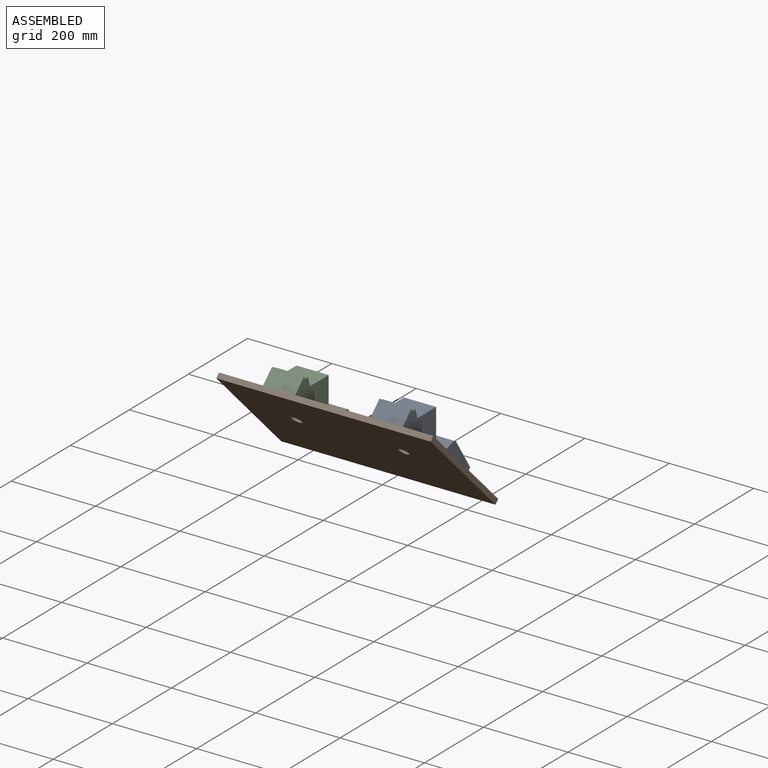
[diagram: assembled view]
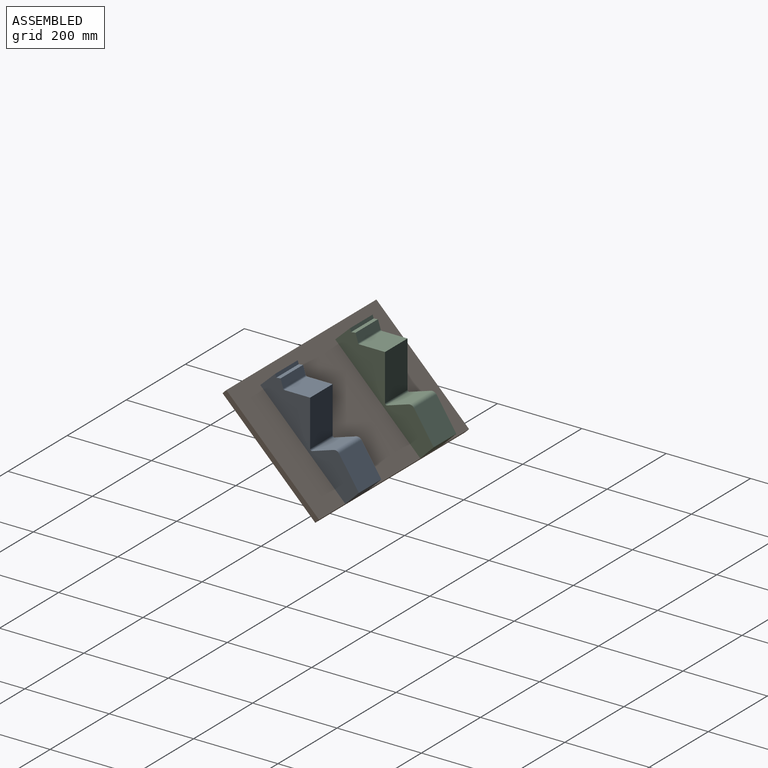
[diagram: assembled view, second angle]
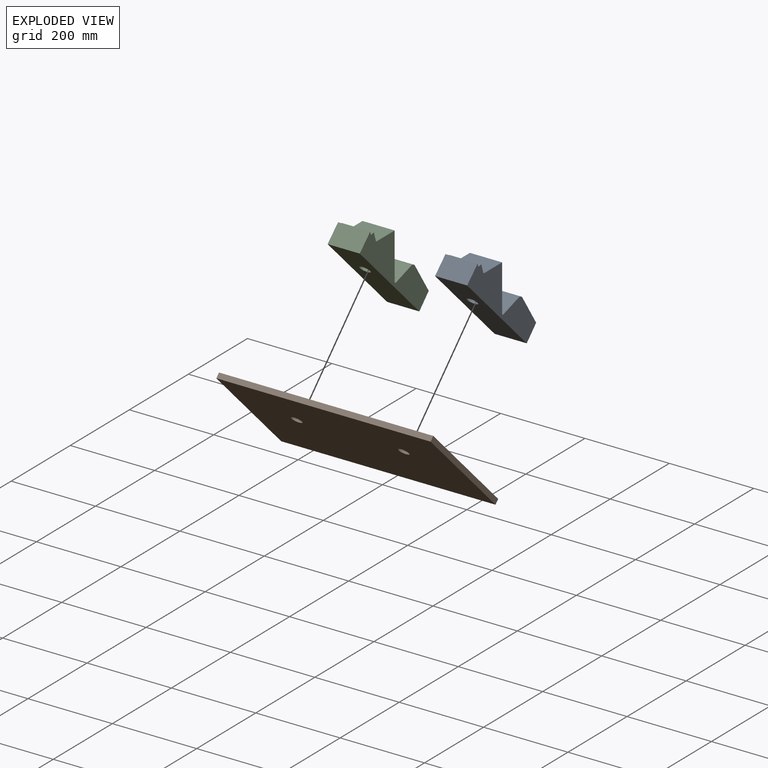
[diagram: exploded view]
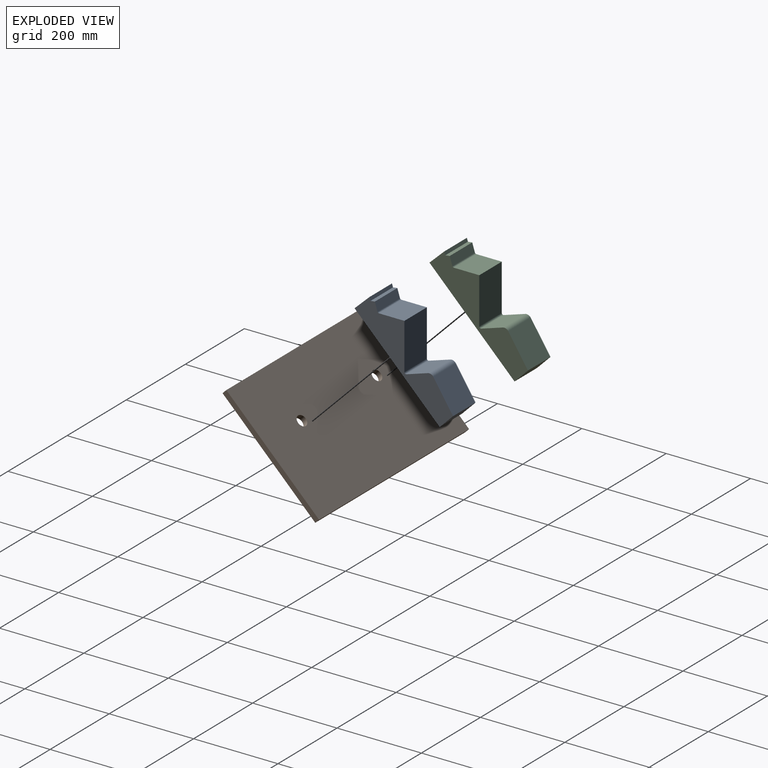
[diagram: exploded view, second angle]
ASSEMBLY  parts=3 mates=2
PART A: 18 faces, bbox 76.2x233.5x234.3 mm
  f0: cylinder r=3.56mm len=76.2mm, axis (-1,0,0), area 425.6mm2, adj f1,f13,f14,f15
  f1: plane 109.79x76.2mm, normal (0,1,0), area 8366mm2, adj f0,f2,f14,f15
  f2: plane 76.2x60.46mm, normal (0,0,1), area 4607.1mm2, adj f1,f3,f14,f15
  f3: cylinder r=3.47mm len=76.2mm, axis (1,0,0), area 334.8mm2, adj f2,f4,f14,f15
  f4: plane 76.2x20.08mm, normal (0,0.95,0.3), area 1604.4mm2, adj f3,f5,f14,f15
  f5: plane 76.2x10.26mm, normal (0,-0.12,0.99), area 787.5mm2, adj f4,f6,f14,f15
  f6: plane 76.2x7.71mm, normal (0,0.95,0.3), area 615.9mm2, adj f5,f7,f14,f15
  f7: plane 76.2x35.32mm, normal (0,-0.69,0.73), area 3707.7mm2, adj f6,f8,f14,f15
  f8: plane 201.63x200.85mm, normal (0,-0.71,-0.71), area 21179.9mm2, adj f7,f9,f14,f15,f16
  f9: plane 76.2x31.99mm, normal (0,0.71,-0.71), area 3440.1mm2, adj f8,f10,f14,f15
  f10: plane 76.2x71.43mm, normal (0,0.84,0.55), area 6494mm2, adj f9,f11,f14,f15
  f11: cylinder r=11.77mm len=76.2mm, axis (1,0,0), area 1165.2mm2, adj f10,f12,f14,f15
  f12: plane 76.2x50.89mm, normal (0,-0.3,0.95), area 4065.7mm2, adj f11,f13,f14,f15
  f13: cylinder r=3.56mm len=76.2mm, axis (1,0,0), area 82.8mm2, adj f0,f12,f14,f15
  f14: plane 234.33x233.5mm, normal (1,0,0), area 14409.4mm2, adj f0,f1,f2,f3,f4,f5,f6,f7
  f15: plane 234.33x233.5mm, normal (-1,0,0), area 14409.4mm2, adj f0,f1,f2,f3,f4,f5,f6,f7
  f16: cylinder r=12.7mm len=26.96mm, axis (0,-0.71,-0.71), area 1013.4mm2, adj f8,f17
  f17: plane 25.4x18mm, normal (0,-0.71,-0.71), area 506.7mm2, adj f16
PART B: 8 faces, bbox 508x228.7x227.9 mm
  f0: plane 508x219.75mm, normal (0,0.71,0.71), area 156553mm2, adj f2,f3,f4,f5,f6,f7
  f1: plane 508x219.75mm, normal (0,-0.71,-0.71), area 156553mm2, adj f2,f3,f4,f5,f6,f7
  f2: plane 228.71x227.9mm, normal (-1,0,0), area 3939.2mm2, adj f0,f1,f3,f5
  f3: plane 508x9mm, normal (0,0.71,-0.71), area 6451.6mm2, adj f0,f1,f2,f4
  f4: plane 228.71x227.9mm, normal (1,0,0), area 3939.2mm2, adj f0,f1,f3,f5
  f5: plane 508x9mm, normal (0,-0.71,0.71), area 6451.6mm2, adj f0,f1,f2,f4
  f6: cylinder r=12.7mm len=26.96mm, axis (0,0.71,0.71), area 1013.4mm2, adj f0,f1
  f7: cylinder r=12.7mm len=26.96mm, axis (0,0.71,0.71), area 1013.4mm2, adj f0,f1
PART C: same geometry as A
PLACE A t=(495,123.6,36.67)mm
PLACE B t=(152.1,105.29,54.91)mm
PLACE C t=(240.7,123.09,37.18)mm
MATE planar B.f6 <-> A.f16  axis (0,0.71,0.71) through (528.32,-73.32,-86.2)mm
MATE planar C.f16 <-> B.f7  axis (0,-0.71,-0.71) through (274.02,-73.83,-85.68)mm
